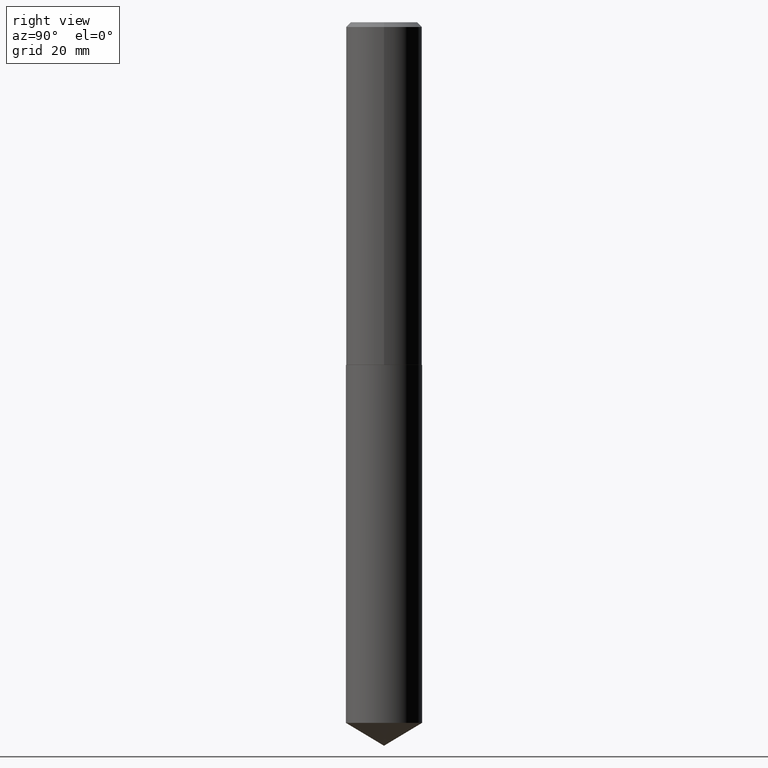
[diagram: clean part render]
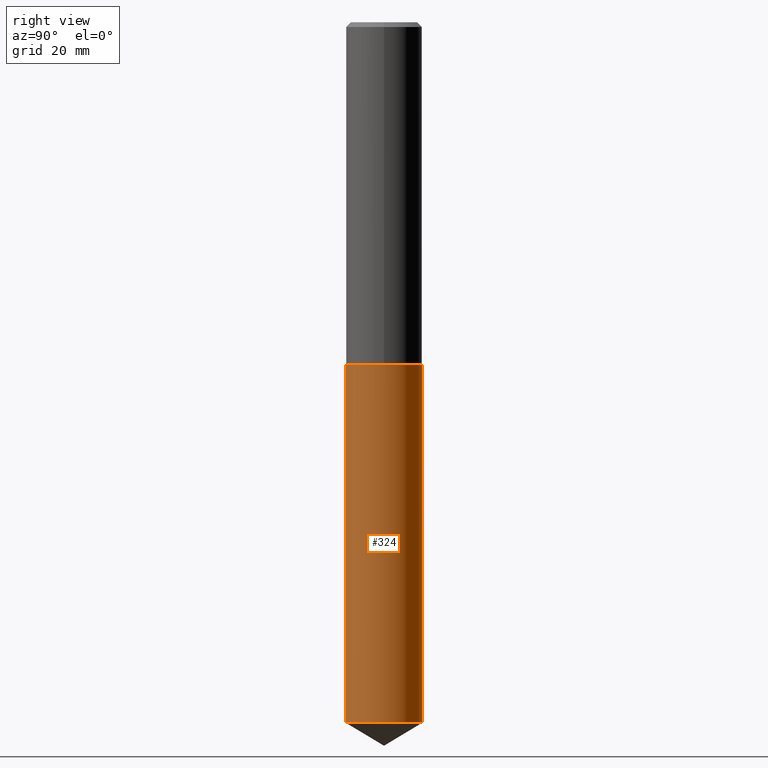
[diagram: same view with one face highlighted and labeled with its STEP entity id]
A machine part, right view. The second image highlights one B-rep face of the part: STEP entity #324.
In plain terms, the highlighted cylindrical surface (partial cylindrical patch) has radius 6.35 mm, axis along (-0, 0, 1).
Its self-contained STEP definition (entity closure, byte-faithful):
#3 = AXIS2_PLACEMENT_3D ( 'NONE', #251, #311, #338 ) ;
#13 = ORIENTED_EDGE ( 'NONE', *, *, #76, .F. ) ;
#29 = AXIS2_PLACEMENT_3D ( 'NONE', #281, #319, #247 ) ;
#35 = CIRCLE ( 'NONE', #29, 0.2500000000000000000 ) ;
#39 = CYLINDRICAL_SURFACE ( 'NONE', #3, 0.2500000000000000000 ) ;
#58 = CIRCLE ( 'NONE', #282, 0.2500000000000000000 ) ;
#67 = VECTOR ( 'NONE', #153, 39.37007874015748143 ) ;
#71 = FACE_OUTER_BOUND ( 'NONE', #365, .T. ) ;
#76 = EDGE_CURVE ( 'NONE', #139, #315, #35, .T. ) ;
#124 = DIRECTION ( 'NONE',  ( -2.445535948441506068E-29, 3.491385187310524484E-15, 1.000000000000000000 ) ) ;
#127 = CARTESIAN_POINT ( 'NONE',  ( -1.745740669421511457E-15, -0.2500000000000078271, -2.249999999999999112 ) ) ;
#128 = ORIENTED_EDGE ( 'NONE', *, *, #355, .T. ) ;
#139 = VERTEX_POINT ( 'NONE', #362 ) ;
#142 = DIRECTION ( 'NONE',  ( -2.445535948441506068E-29, 3.491385187310524484E-15, 1.000000000000000000 ) ) ;
#149 = CARTESIAN_POINT ( 'NONE',  ( 1.124878812406164387E-28, -1.605983701444562485E-14, -4.599784845243109821 ) ) ;
#153 = DIRECTION ( 'NONE',  ( -2.445535948441506068E-29, 3.491385187310524484E-15, 1.000000000000000000 ) ) ;
#155 = LINE ( 'NONE', #248, #272 ) ;
#177 = DIRECTION ( 'NONE',  ( -6.982962677686265922E-15, -1.000000000000000000, 4.370956789862821150E-15 ) ) ;
#181 = CARTESIAN_POINT ( 'NONE',  ( 1.776356839400362877E-15, 0.2499999999999921452, -2.250000000000000444 ) ) ;
#183 = EDGE_CURVE ( 'NONE', #312, #234, #58, .T. ) ;
#186 = ORIENTED_EDGE ( 'NONE', *, *, #384, .F. ) ;
#215 = LINE ( 'NONE', #127, #67 ) ;
#234 = VERTEX_POINT ( 'NONE', #273 ) ;
#247 = DIRECTION ( 'NONE',  ( -6.982962677686265922E-15, -1.000000000000000000, 3.278217592397115862E-15 ) ) ;
#248 = CARTESIAN_POINT ( 'NONE',  ( 1.776356839400305291E-15, 0.2499999999999921452, -2.250000000000000444 ) ) ;
#251 = CARTESIAN_POINT ( 'NONE',  ( 5.502304813916556222E-29, -7.855833012397076871E-15, -2.249999999999999556 ) ) ;
#272 = VECTOR ( 'NONE', #124, 39.37007874015748143 ) ;
#273 = CARTESIAN_POINT ( 'NONE',  ( 1.776356839400362483E-15, 0.2499999999999839018, -4.599784845243110709 ) ) ;
#281 = CARTESIAN_POINT ( 'NONE',  ( 5.502304813916556222E-29, -7.855833012397076871E-15, -2.249999999999999556 ) ) ;
#282 = AXIS2_PLACEMENT_3D ( 'NONE', #149, #142, #177 ) ;
#311 = DIRECTION ( 'NONE',  ( -2.445535948441506068E-29, 3.491385187310524484E-15, 1.000000000000000000 ) ) ;
#312 = VERTEX_POINT ( 'NONE', #364 ) ;
#315 = VERTEX_POINT ( 'NONE', #181 ) ;
#319 = DIRECTION ( 'NONE',  ( -2.445535948441506068E-29, 3.491385187310524484E-15, 1.000000000000000000 ) ) ;
#324 = ADVANCED_FACE ( 'NONE', ( #71 ), #39, .T. ) ;
#338 = DIRECTION ( 'NONE',  ( -6.982962677686265922E-15, -1.000000000000000000, 3.278217592397115862E-15 ) ) ;
#355 = EDGE_CURVE ( 'NONE', #234, #315, #155, .T. ) ;
#362 = CARTESIAN_POINT ( 'NONE',  ( -1.745740669421511457E-15, -0.2500000000000078271, -2.249999999999999112 ) ) ;
#364 = CARTESIAN_POINT ( 'NONE',  ( -1.745740669421453673E-15, -0.2500000000000159872, -4.599784845243108933 ) ) ;
#365 = EDGE_LOOP ( 'NONE', ( #378, #128, #13, #186 ) ) ;
#378 = ORIENTED_EDGE ( 'NONE', *, *, #183, .T. ) ;
#384 = EDGE_CURVE ( 'NONE', #312, #139, #215, .T. ) ;